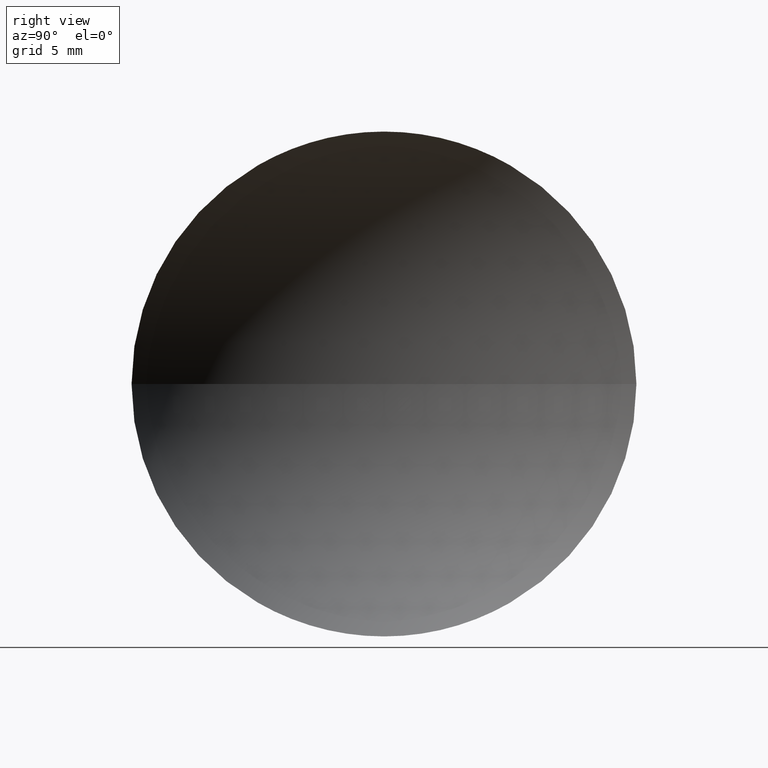
[diagram: clean part render]
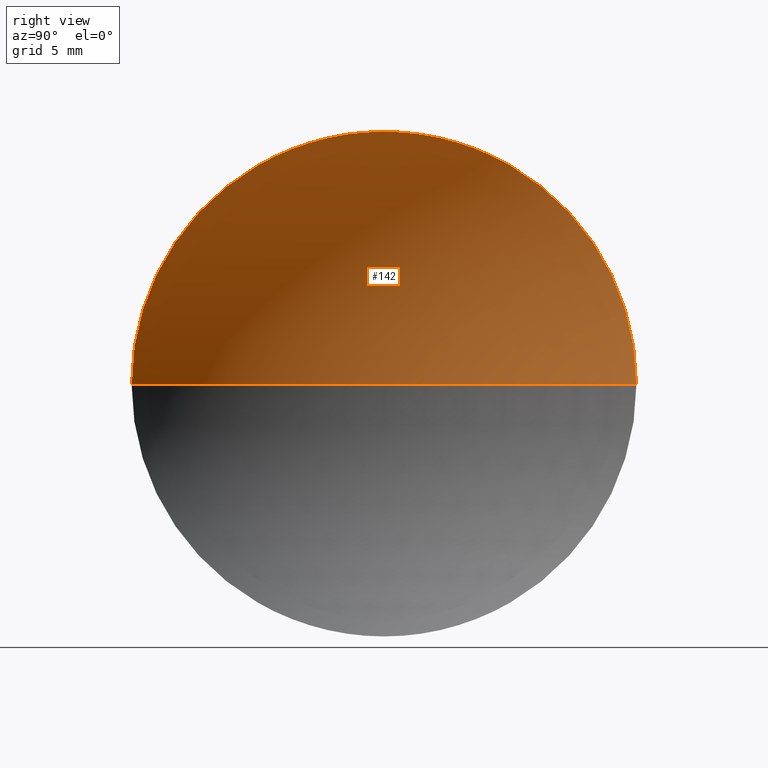
[diagram: same view with one face highlighted and labeled with its STEP entity id]
A machine part, right view. The second image highlights one B-rep face of the part: STEP entity #142.
In plain terms, the highlighted spherical surface has radius 16.27 mm.
Its self-contained STEP definition (entity closure, byte-faithful):
#19 = EDGE_CURVE ( 'NONE', #154, #118, #66, .T. ) ;
#21 = CARTESIAN_POINT ( 'NONE',  ( 65.21363783927023400, 45.07872591329309100, 1.530808498934191500E-015 ) ) ;
#26 = CIRCLE ( 'NONE', #80, 12.50000000000000400 ) ;
#30 = CARTESIAN_POINT ( 'NONE',  ( 65.21363783927022000, 32.57872591329309100, 0.0000000000000000000 ) ) ;
#35 = DIRECTION ( 'NONE',  ( 0.0000000000000000000, 0.0000000000000000000, 1.000000000000000000 ) ) ;
#37 = EDGE_CURVE ( 'NONE', #154, #145, #26, .T. ) ;
#45 = CARTESIAN_POINT ( 'NONE',  ( 75.62819015802112700, 32.57872591329309100, 0.0000000000000000000 ) ) ;
#48 = AXIS2_PLACEMENT_3D ( 'NONE', #45, #79, #136 ) ;
#53 = CARTESIAN_POINT ( 'NONE',  ( 75.62819015802112700, 32.57872591329309100, 0.0000000000000000000 ) ) ;
#58 = ORIENTED_EDGE ( 'NONE', *, *, #155, .F. ) ;
#63 = DIRECTION ( 'NONE',  ( -1.000000000000000000, 4.853228644174421400E-016, -0.0000000000000000000 ) ) ;
#64 = DIRECTION ( 'NONE',  ( 0.0000000000000000000, -1.000000000000000000, 0.0000000000000000000 ) ) ;
#66 = CIRCLE ( 'NONE', #48, 16.27000000000000700 ) ;
#79 = DIRECTION ( 'NONE',  ( 0.0000000000000000000, -0.0000000000000000000, -1.000000000000000000 ) ) ;
#80 = AXIS2_PLACEMENT_3D ( 'NONE', #30, #63, #64 ) ;
#88 = EDGE_LOOP ( 'NONE', ( #58, #151, #127 ) ) ;
#93 = CARTESIAN_POINT ( 'NONE',  ( 59.35819015802111700, 32.57872591329309800, 0.0000000000000000000 ) ) ;
#94 = SPHERICAL_SURFACE ( 'NONE', #96, 16.27000000000000300 ) ;
#96 = AXIS2_PLACEMENT_3D ( 'NONE', #104, #35, #143 ) ;
#104 = CARTESIAN_POINT ( 'NONE',  ( 75.62819015802112700, 32.57872591329309100, 0.0000000000000000000 ) ) ;
#108 = CIRCLE ( 'NONE', #117, 16.27000000000000300 ) ;
#114 = DIRECTION ( 'NONE',  ( 0.0000000000000000000, -1.000000000000000000, -1.224646799147353200E-016 ) ) ;
#117 = AXIS2_PLACEMENT_3D ( 'NONE', #53, #158, #114 ) ;
#118 = VERTEX_POINT ( 'NONE', #93 ) ;
#127 = ORIENTED_EDGE ( 'NONE', *, *, #19, .T. ) ;
#136 = DIRECTION ( 'NONE',  ( -1.000000000000000000, 0.0000000000000000000, 0.0000000000000000000 ) ) ;
#138 = CARTESIAN_POINT ( 'NONE',  ( 65.21363783927020600, 20.07872591329308400, 0.0000000000000000000 ) ) ;
#142 = ADVANCED_FACE ( 'NONE', ( #147 ), #94, .F. ) ;
#143 = DIRECTION ( 'NONE',  ( -8.529679045983069200E-016, -1.000000000000000000, 0.0000000000000000000 ) ) ;
#145 = VERTEX_POINT ( 'NONE', #21 ) ;
#147 = FACE_OUTER_BOUND ( 'NONE', #88, .T. ) ;
#151 = ORIENTED_EDGE ( 'NONE', *, *, #37, .F. ) ;
#154 = VERTEX_POINT ( 'NONE', #138 ) ;
#155 = EDGE_CURVE ( 'NONE', #145, #118, #108, .T. ) ;
#158 = DIRECTION ( 'NONE',  ( -5.943490924618453600E-032, -1.224646799147353200E-016, 1.000000000000000000 ) ) ;